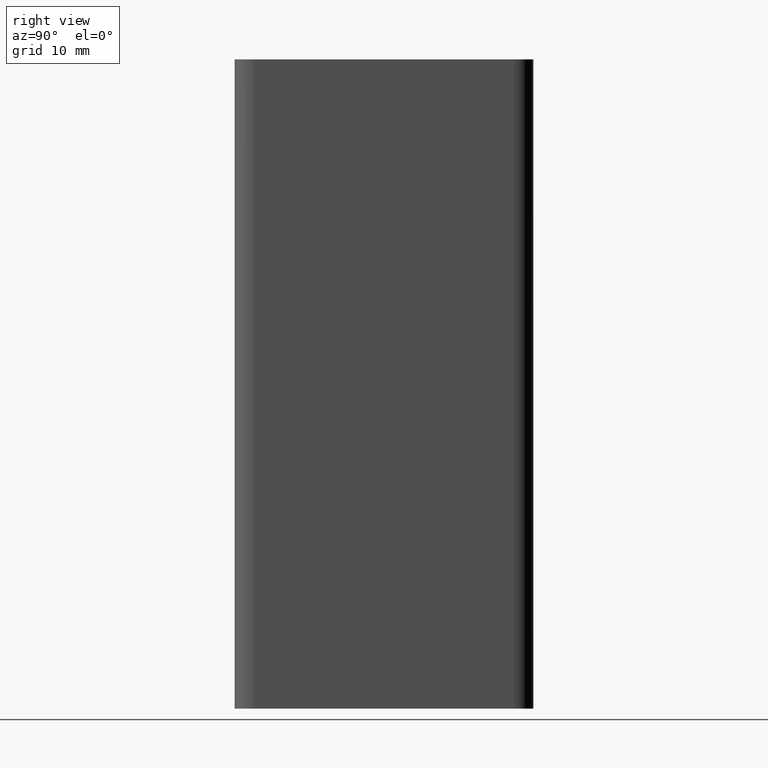
[diagram: clean part render]
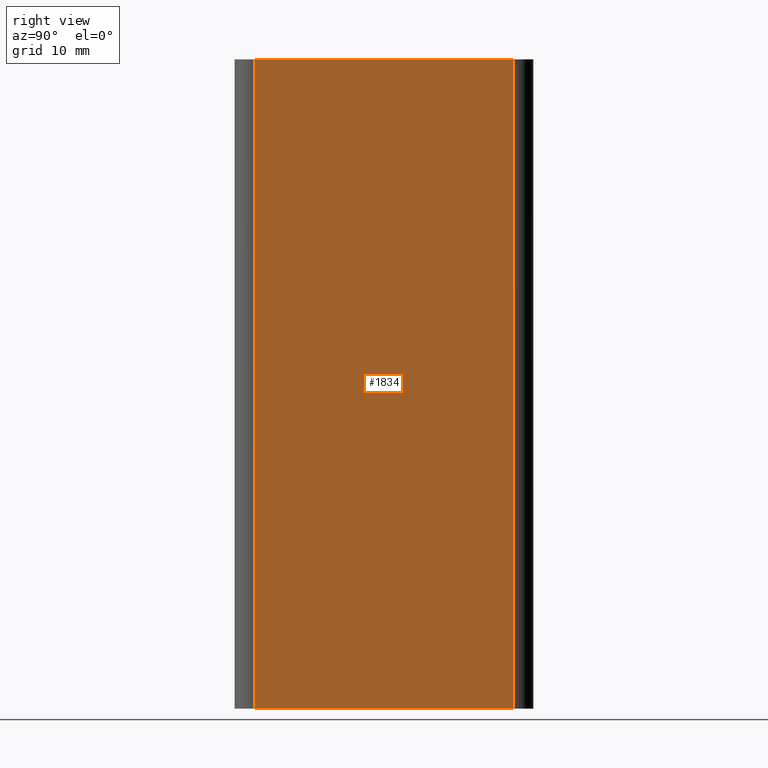
[diagram: same view with one face highlighted and labeled with its STEP entity id]
A machine part, right view. The second image highlights one B-rep face of the part: STEP entity #1834.
In plain terms, the highlighted planar face has unit normal (1, 0, 0).
Its self-contained STEP definition (entity closure, byte-faithful):
#47=PLANE('',#1992);
#126=FACE_OUTER_BOUND('',#220,.T.);
#220=EDGE_LOOP('',(#1419,#1420,#1421,#1422));
#376=LINE('',#2982,#560);
#377=LINE('',#2985,#561);
#378=LINE('',#2987,#562);
#379=LINE('',#2988,#563);
#560=VECTOR('',#2424,100.);
#561=VECTOR('',#2427,39.9879894048844);
#562=VECTOR('',#2428,39.9879894048844);
#563=VECTOR('',#2429,100.);
#837=VERTEX_POINT('',#2978);
#838=VERTEX_POINT('',#2980);
#839=VERTEX_POINT('',#2984);
#840=VERTEX_POINT('',#2986);
#1082=EDGE_CURVE('',#837,#838,#376,.T.);
#1083=EDGE_CURVE('',#837,#839,#377,.T.);
#1084=EDGE_CURVE('',#840,#838,#378,.T.);
#1085=EDGE_CURVE('',#839,#840,#379,.T.);
#1419=ORIENTED_EDGE('',*,*,#1083,.F.);
#1420=ORIENTED_EDGE('',*,*,#1082,.T.);
#1421=ORIENTED_EDGE('',*,*,#1084,.F.);
#1422=ORIENTED_EDGE('',*,*,#1085,.F.);
#1834=ADVANCED_FACE('',(#126),#47,.T.);
#1992=AXIS2_PLACEMENT_3D('',#2983,#2425,#2426);
#2424=DIRECTION('',(0.,0.,1.));
#2425=DIRECTION('center_axis',(1.,5.55278242866368E-17,0.));
#2426=DIRECTION('ref_axis',(0.,1.,0.));
#2427=DIRECTION('',(5.55278242866368E-17,-1.,0.));
#2428=DIRECTION('',(-5.55278242866368E-17,1.,0.));
#2429=DIRECTION('',(0.,0.,1.));
#2978=CARTESIAN_POINT('',(12.1000477778851,20.0998094427343,0.));
#2980=CARTESIAN_POINT('',(12.1000477778851,20.0998094427343,100.));
#2982=CARTESIAN_POINT('',(12.1000477778851,20.0998094427343,0.));
#2983=CARTESIAN_POINT('Origin',(12.1000477778851,-19.8881799621501,0.));
#2984=CARTESIAN_POINT('',(12.1000477778851,-19.8881799621501,0.));
#2985=CARTESIAN_POINT('',(12.1000477778851,20.0998094427343,0.));
#2986=CARTESIAN_POINT('',(12.1000477778851,-19.8881799621501,100.));
#2987=CARTESIAN_POINT('',(12.1000477778851,20.0998094427343,100.));
#2988=CARTESIAN_POINT('',(12.1000477778851,-19.8881799621501,0.));